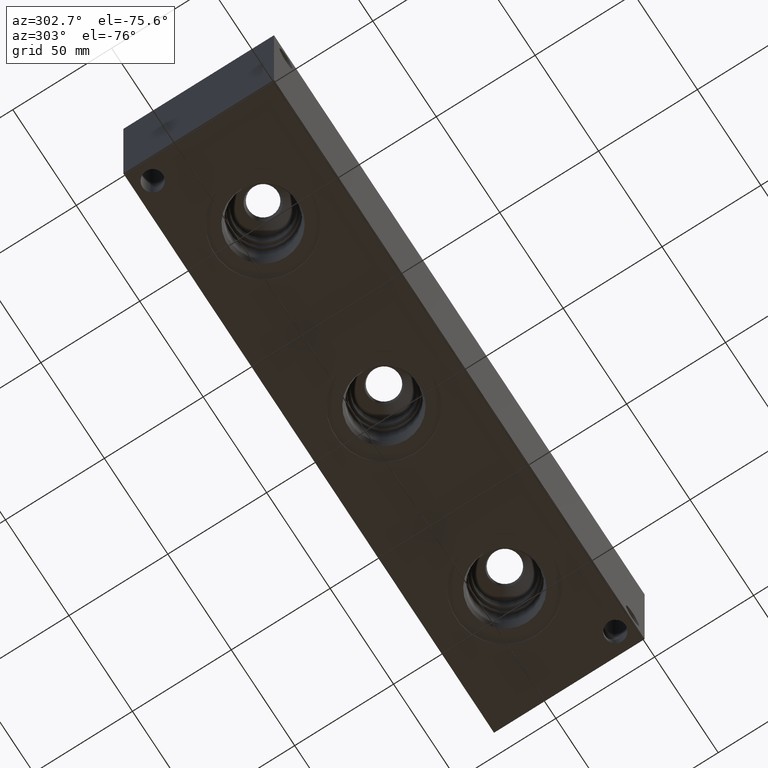
[diagram: clean part render]
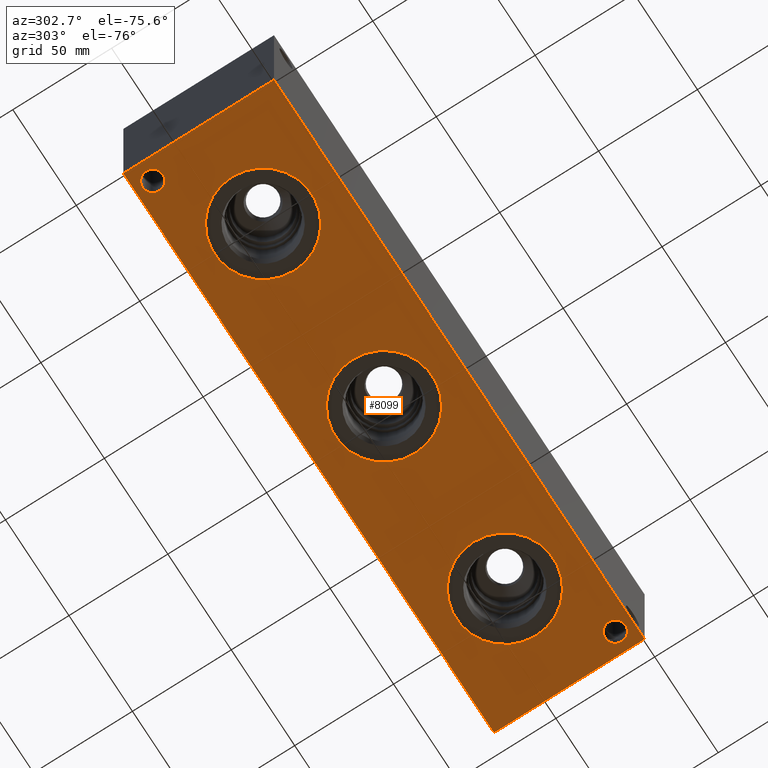
[diagram: same view with one face highlighted and labeled with its STEP entity id]
A machine part, auxiliary view. The second image highlights one B-rep face of the part: STEP entity #8099.
In plain terms, the highlighted planar face has unit normal (0, 0, 1).
Its self-contained STEP definition (entity closure, byte-faithful):
#161=CIRCLE('',#8420,24.5618);
#162=CIRCLE('',#8421,24.5618);
#167=CIRCLE('',#8430,24.5618);
#168=CIRCLE('',#8431,24.5618);
#173=CIRCLE('',#8440,24.5618);
#174=CIRCLE('',#8441,24.5618);
#219=CIRCLE('',#8530,5.1562);
#220=CIRCLE('',#8532,5.1562);
#286=FACE_BOUND('',#1511,.T.);
#287=FACE_BOUND('',#1512,.T.);
#288=FACE_BOUND('',#1513,.T.);
#289=FACE_BOUND('',#1514,.T.);
#290=FACE_BOUND('',#1515,.T.);
#1044=FACE_OUTER_BOUND('',#1510,.T.);
#1510=EDGE_LOOP('',(#7125,#7126,#7127,#7128));
#1511=EDGE_LOOP('',(#7129,#7130));
#1512=EDGE_LOOP('',(#7131,#7132));
#1513=EDGE_LOOP('',(#7133,#7134));
#1514=EDGE_LOOP('',(#7135));
#1515=EDGE_LOOP('',(#7136));
#2261=LINE('',#13955,#3014);
#2264=LINE('',#13960,#3017);
#2266=LINE('',#13964,#3019);
#2268=LINE('',#13967,#3021);
#3014=VECTOR('',#10210,10.);
#3017=VECTOR('',#10215,10.);
#3019=VECTOR('',#10219,10.);
#3021=VECTOR('',#10223,10.);
#3680=VERTEX_POINT('',#13681);
#3681=VERTEX_POINT('',#13682);
#3686=VERTEX_POINT('',#13700);
#3687=VERTEX_POINT('',#13701);
#3692=VERTEX_POINT('',#13719);
#3693=VERTEX_POINT('',#13720);
#3742=VERTEX_POINT('',#13891);
#3743=VERTEX_POINT('',#13895);
#3761=VERTEX_POINT('',#13953);
#3762=VERTEX_POINT('',#13954);
#3763=VERTEX_POINT('',#13959);
#3764=VERTEX_POINT('',#13963);
#4747=EDGE_CURVE('',#3680,#3681,#161,.T.);
#4748=EDGE_CURVE('',#3681,#3680,#162,.T.);
#4756=EDGE_CURVE('',#3686,#3687,#167,.T.);
#4757=EDGE_CURVE('',#3687,#3686,#168,.T.);
#4765=EDGE_CURVE('',#3692,#3693,#173,.T.);
#4766=EDGE_CURVE('',#3693,#3692,#174,.T.);
#4852=EDGE_CURVE('',#3742,#3742,#219,.T.);
#4854=EDGE_CURVE('',#3743,#3743,#220,.T.);
#4881=EDGE_CURVE('',#3761,#3762,#2261,.T.);
#4884=EDGE_CURVE('',#3763,#3761,#2264,.T.);
#4886=EDGE_CURVE('',#3764,#3763,#2266,.T.);
#4888=EDGE_CURVE('',#3762,#3764,#2268,.T.);
#7125=ORIENTED_EDGE('',*,*,#4888,.F.);
#7126=ORIENTED_EDGE('',*,*,#4881,.F.);
#7127=ORIENTED_EDGE('',*,*,#4884,.F.);
#7128=ORIENTED_EDGE('',*,*,#4886,.F.);
#7129=ORIENTED_EDGE('',*,*,#4747,.T.);
#7130=ORIENTED_EDGE('',*,*,#4748,.T.);
#7131=ORIENTED_EDGE('',*,*,#4756,.T.);
#7132=ORIENTED_EDGE('',*,*,#4757,.T.);
#7133=ORIENTED_EDGE('',*,*,#4765,.T.);
#7134=ORIENTED_EDGE('',*,*,#4766,.T.);
#7135=ORIENTED_EDGE('',*,*,#4852,.T.);
#7136=ORIENTED_EDGE('',*,*,#4854,.T.);
#7365=PLANE('',#8566);
#8099=ADVANCED_FACE('',(#1044,#286,#287,#288,#289,#290),#7365,.F.);
#8420=AXIS2_PLACEMENT_3D('',#13683,#9877,#9878);
#8421=AXIS2_PLACEMENT_3D('',#13684,#9879,#9880);
#8430=AXIS2_PLACEMENT_3D('',#13702,#9900,#9901);
#8431=AXIS2_PLACEMENT_3D('',#13703,#9902,#9903);
#8440=AXIS2_PLACEMENT_3D('',#13721,#9923,#9924);
#8441=AXIS2_PLACEMENT_3D('',#13722,#9925,#9926);
#8530=AXIS2_PLACEMENT_3D('',#13893,#10136,#10137);
#8532=AXIS2_PLACEMENT_3D('',#13897,#10141,#10142);
#8566=AXIS2_PLACEMENT_3D('',#13969,#10226,#10227);
#9877=DIRECTION('center_axis',(0.,0.,1.));
#9878=DIRECTION('ref_axis',(1.,0.,0.));
#9879=DIRECTION('center_axis',(0.,0.,1.));
#9880=DIRECTION('ref_axis',(1.,0.,0.));
#9900=DIRECTION('center_axis',(0.,0.,1.));
#9901=DIRECTION('ref_axis',(1.,0.,0.));
#9902=DIRECTION('center_axis',(0.,0.,1.));
#9903=DIRECTION('ref_axis',(1.,0.,0.));
#9923=DIRECTION('center_axis',(0.,0.,1.));
#9924=DIRECTION('ref_axis',(1.,0.,0.));
#9925=DIRECTION('center_axis',(0.,0.,1.));
#9926=DIRECTION('ref_axis',(1.,0.,0.));
#10136=DIRECTION('center_axis',(0.,0.,1.));
#10137=DIRECTION('ref_axis',(1.,0.,0.));
#10141=DIRECTION('center_axis',(0.,0.,1.));
#10142=DIRECTION('ref_axis',(1.,0.,0.));
#10210=DIRECTION('',(0.,-1.,0.));
#10215=DIRECTION('',(-1.,0.,0.));
#10219=DIRECTION('',(0.,1.,0.));
#10223=DIRECTION('',(1.,0.,0.));
#10226=DIRECTION('center_axis',(0.,0.,1.));
#10227=DIRECTION('ref_axis',(1.,0.,0.));
#13681=CARTESIAN_POINT('',(170.6118,38.1,0.));
#13682=CARTESIAN_POINT('',(121.4882,38.1,0.));
#13683=CARTESIAN_POINT('Origin',(146.05,38.1,0.));
#13684=CARTESIAN_POINT('Origin',(146.05,38.1,0.));
#13700=CARTESIAN_POINT('',(75.3618,38.1,0.));
#13701=CARTESIAN_POINT('',(26.2382,38.1,0.));
#13702=CARTESIAN_POINT('Origin',(50.8,38.1,0.));
#13703=CARTESIAN_POINT('Origin',(50.8,38.1,0.));
#13719=CARTESIAN_POINT('',(265.8618,38.1,0.));
#13720=CARTESIAN_POINT('',(216.7382,38.1,0.));
#13721=CARTESIAN_POINT('Origin',(241.3,38.1,0.));
#13722=CARTESIAN_POINT('Origin',(241.3,38.1,0.));
#13891=CARTESIAN_POINT('',(4.3688,67.4624,0.));
#13893=CARTESIAN_POINT('Origin',(9.525,67.4624,0.));
#13895=CARTESIAN_POINT('',(277.4188,8.7376,0.));
#13897=CARTESIAN_POINT('Origin',(282.575,8.7376,0.));
#13953=CARTESIAN_POINT('',(0.,76.2,0.));
#13954=CARTESIAN_POINT('',(0.,0.,0.));
#13955=CARTESIAN_POINT('',(0.,76.2,0.));
#13959=CARTESIAN_POINT('',(292.1,76.2,0.));
#13960=CARTESIAN_POINT('',(292.1,76.2,0.));
#13963=CARTESIAN_POINT('',(292.1,0.,0.));
#13964=CARTESIAN_POINT('',(292.1,0.,0.));
#13967=CARTESIAN_POINT('',(0.,0.,0.));
#13969=CARTESIAN_POINT('Origin',(146.05,38.1,0.));